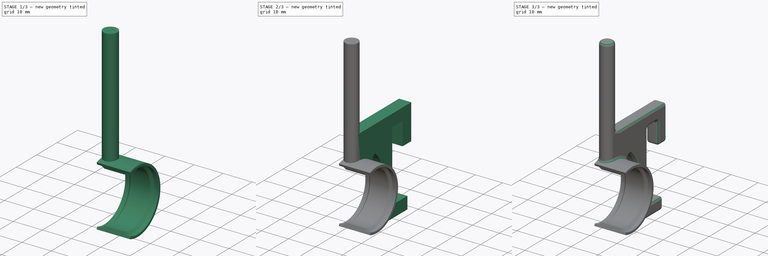
[diagram: build sequence overview — one tinted view per stage of 3, left to right]
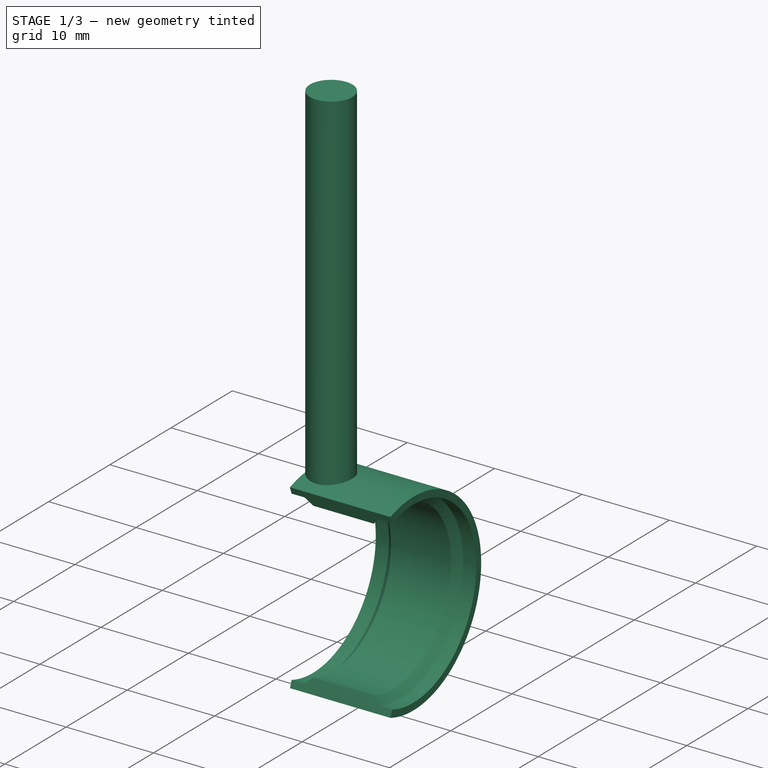
[diagram: stage 1 of 3 — iso view after this stage's code; geometry added in this stage tinted green]
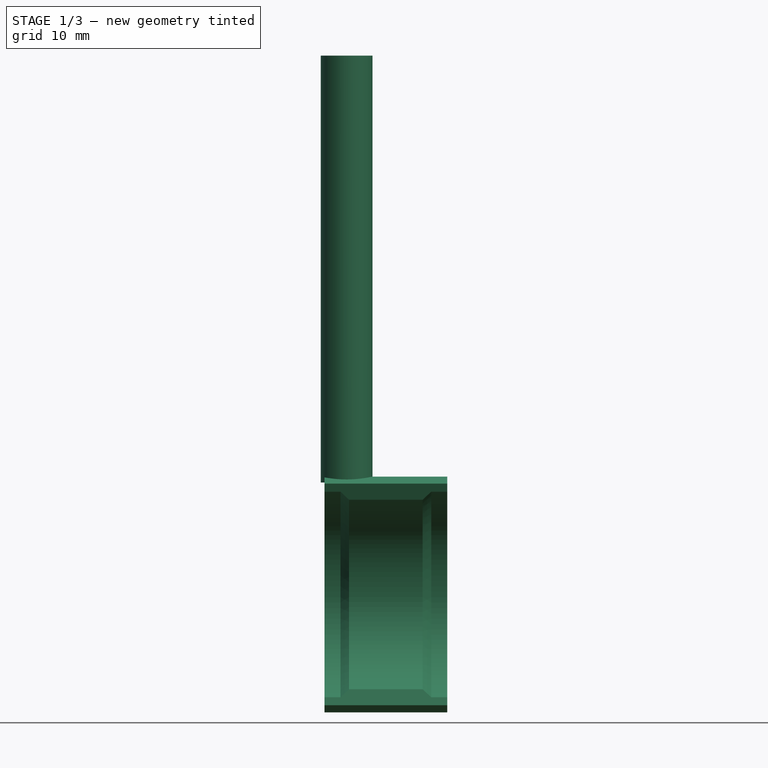
[diagram: stage 1 of 3 — front view after this stage's code; geometry added in this stage tinted green]
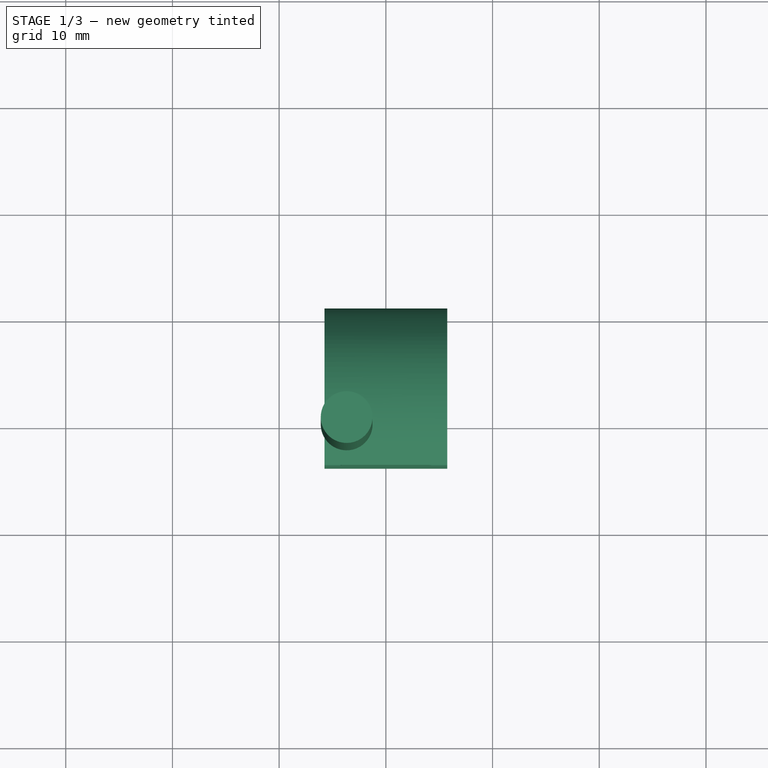
[diagram: stage 1 of 3 — top view after this stage's code; geometry added in this stage tinted green]
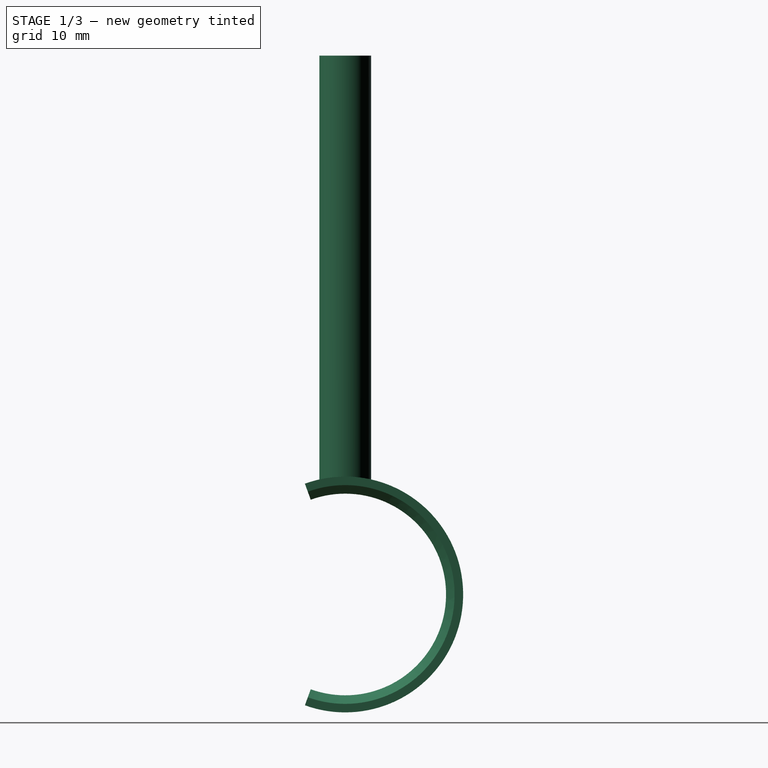
[diagram: stage 1 of 3 — right view after this stage's code; geometry added in this stage tinted green]
FCSTD DOCUMENT  (FreeCAD 1.2R20260210 (Git shallow))
Label: PD_SpoolHolder
License: Creative Commons Attribution 4.0
LicenseURL: https://creativecommons.org/licenses/by/4.0/
objects: Sketcher::SketchObject×3, PartDesign::Pad×2, PartDesign::Revolution×1, PartDesign::Plane×1, PartDesign::Fillet×1, PartDesign::Pocket×1, PartDesign::Body×1, App::Point×1
note: 23 computed .brp shape members not serialized (recipe doc carries the construction recipe); baked Part::Feature solids carry a one-line shape summary decoded from their .brp

FEATURE [Sketcher::SketchObject] Sketch
  ArcFitTolerance = 0
  AttachmentOffset = pos=(0,0,0) rot=(-1,0,0;0.349066rad)
  AttachmentSupport = -> [XZ_Plane]
  ExternalTypes = [0]
  FullyConstrained = true
  MakeInternals = false
  MapMode = 5
  Placement = pos=(0,0,0) rot=(1,0,0;1.22173rad)
  sketch-geometry (8):
    g0: LineSegment StartX=-5.75 StartY=-10.25 StartZ=0 EndX=-5.75 EndY=-11.05 EndZ=0
    g1: LineSegment StartX=-5.75 StartY=-11.05 StartZ=0 EndX=5.75 EndY=-11.05 EndZ=0
    g2: LineSegment StartX=5.75 StartY=-11.05 StartZ=0 EndX=5.75 EndY=-10.25 EndZ=0
    g3: LineSegment StartX=5.75 StartY=-10.25 StartZ=0 EndX=4.25 EndY=-10.25 EndZ=0
    g4: LineSegment StartX=4.25 StartY=-10.25 StartZ=0 EndX=3.45 EndY=-9.45 EndZ=0
    g5: LineSegment StartX=3.45 StartY=-9.45 StartZ=0 EndX=-3.45 EndY=-9.45 EndZ=0
    g6: LineSegment StartX=-3.45 StartY=-9.45 StartZ=0 EndX=-4.25 EndY=-10.25 EndZ=0
    g7: LineSegment StartX=-4.25 StartY=-10.25 StartZ=0 EndX=-5.75 EndY=-10.25 EndZ=0
  constraints (21):
    c: Vertical(g0)
    c: Coincident(g0,g1)
    c: Coincident(g1,g2)
    c: Vertical(g2)
    c: Coincident(g2,g3)
    c: Horizontal(g3)
    c: Coincident(g3,g4)
    c: Coincident(g4,g5)
    c: Coincident(g5,g6)
    c: Coincident(g6,g7)
    c: Coincident(g7,g0)
    c: Horizontal(g7)
    c: Symmetric(g4,g5,g-2)
    c: Symmetric(g3,g6,g-2)
    c: Symmetric(g0,g1,g-2)
    c: DistanceX(g1,g1) = 11.5
    c: DistanceX(g6,g3) = 8.5
    c: DistanceY(g2,g2) = 0.8
    c: DistanceY(g3,g4) = 0.8
    c: DistanceY(g4,g-1) = 9.45
    c: DistanceX(g5,g5) = 6.9
FEATURE [PartDesign::Revolution] Revolution
  Angle = 220
  Angle2 = 0
  Axis = (1,0,0)
  Base = (0,0,0)
  FuseOrder = 0
  Placement = pos=(0,0,0) rot=(1,0,0;1.5708rad)
  Profile = -> Sketch
  ReferenceAxis = -> X_Axis
  Refine = true
  Suppressed = false
  Type = 0
FEATURE [Sketcher::SketchObject] Sketch001
  ArcFitTolerance = 0
  AttachmentOffset = pos=(0,0,50.5) rot=(0,0,1;0rad)
  AttachmentSupport = -> [XY_Plane]
  ExternalTypes = [0]
  FullyConstrained = true
  MakeInternals = false
  MapMode = 5
  Placement = pos=(0,0,50.5) rot=(0,0,1;0rad)
  sketch-geometry (1):
    g0: Circle CenterX=-3.675 CenterY=0 CenterZ=0 NormalX=0 NormalY=0 NormalZ=1 AngleXU=0 Radius=2.425
  constraints (3):
    c: PointOnObject(g0,g-1)
    c: Diameter(g0) = 4.85
    c: DistanceX(g0,g-1) = 3.675
FEATURE [PartDesign::Pad] Pad
  BaseFeature = -> Revolution
  Direction = (0,0,1)
  Length = 40
  Length2 = 10
  Placement = pos=(0,0,0) rot=(1,0,0;1.5708rad)
  Profile = -> Sketch001
  ReferenceAxis = -> Sketch001 [N_Axis]
  Refine = true
  Reversed = true
  SideType = 0
  Suppressed = false
  Type = 0
  Type2 = 0
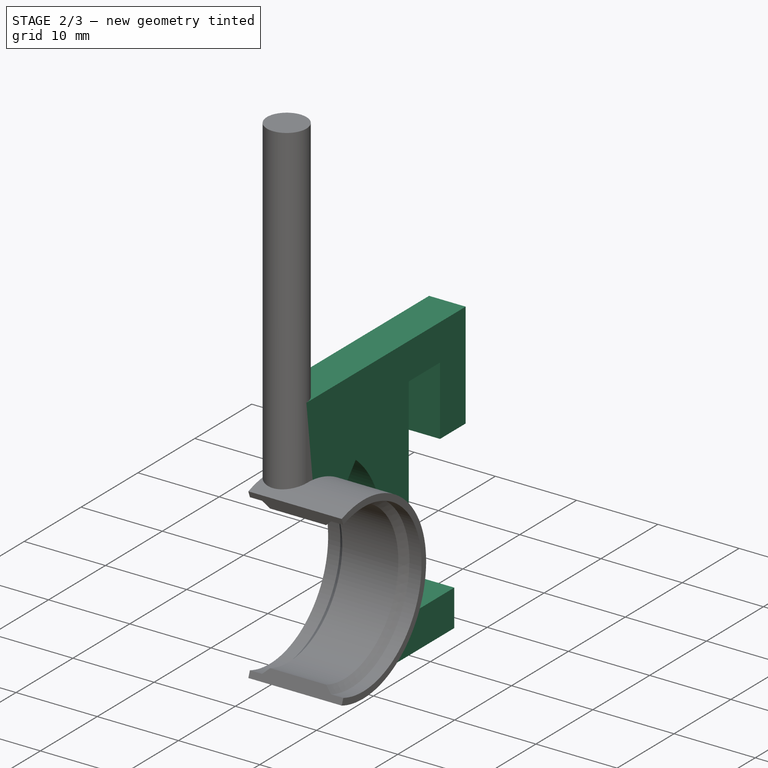
[diagram: stage 2 of 3 — iso view after this stage's code; geometry added in this stage tinted green]
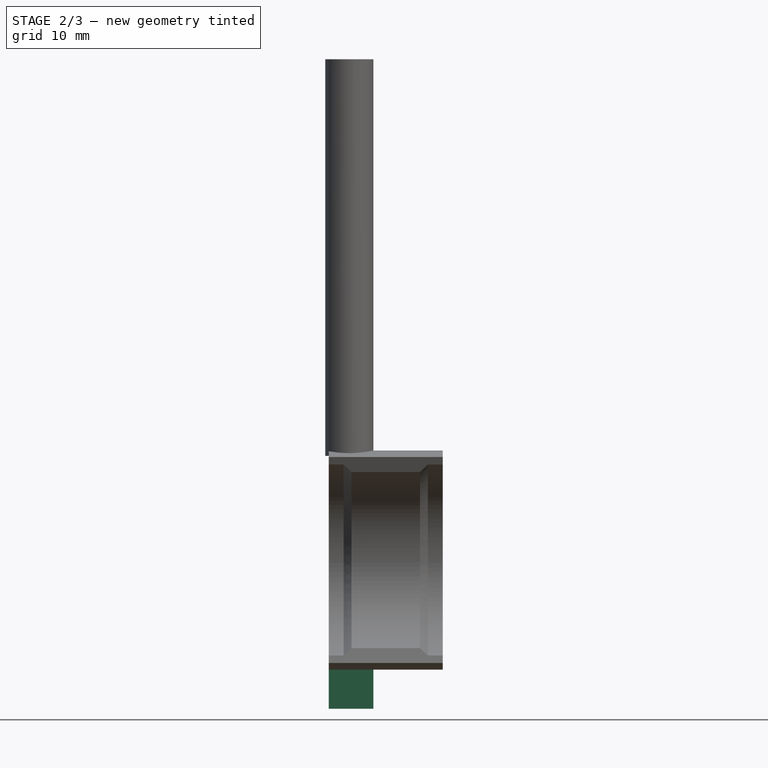
[diagram: stage 2 of 3 — front view after this stage's code; geometry added in this stage tinted green]
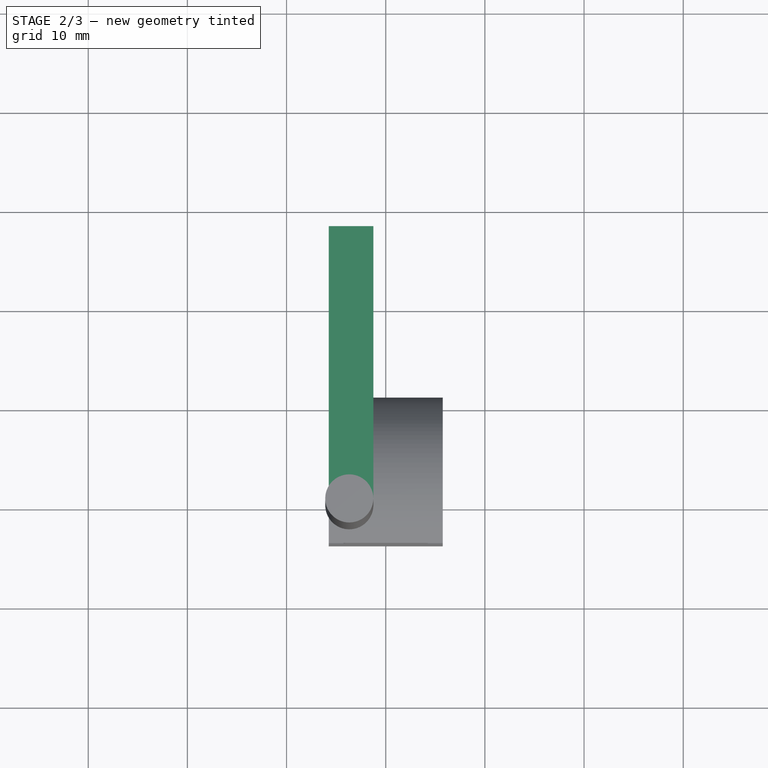
[diagram: stage 2 of 3 — top view after this stage's code; geometry added in this stage tinted green]
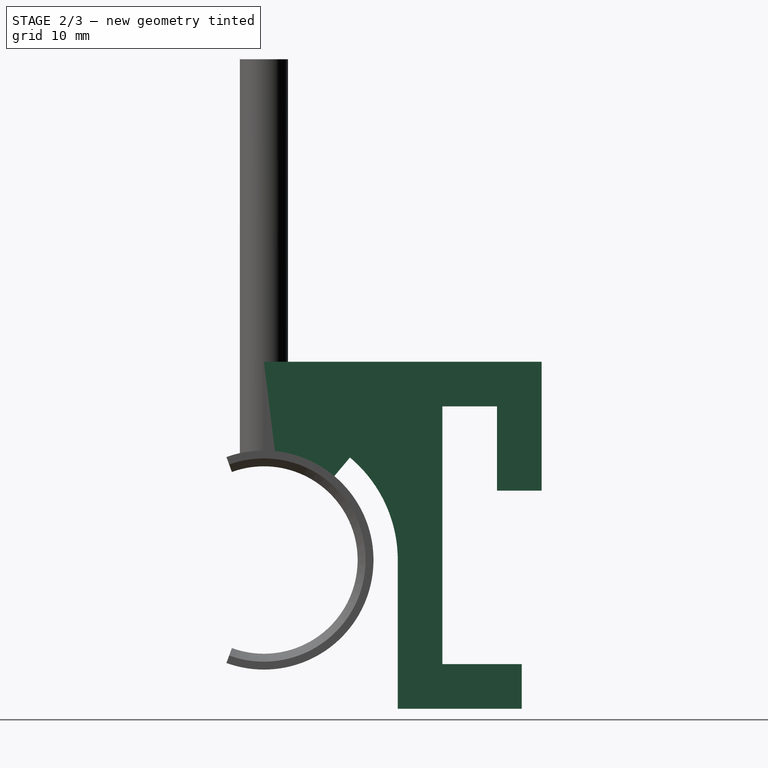
[diagram: stage 2 of 3 — right view after this stage's code; geometry added in this stage tinted green]
FEATURE [PartDesign::Plane] DatumPlane
  AttachmentOffset = pos=(0,0,-5.75) rot=(0,0,1;0rad)
  AttachmentSupport = -> [YZ_Plane]
  Length = 65.6515
  MapMode = 5
  Placement = pos=(-5.75,0,0) rot=(0.57735,0.57735,0.57735;2.0944rad)
  ResizeMode = 0
  Width = 88.1515
FEATURE [Sketcher::SketchObject] Sketch002
  ArcFitTolerance = 0
  AttachmentOffset = pos=(0,0,0) rot=(0,0,-1;1.5708rad)
  AttachmentSupport = -> [DatumPlane]
  ExternalTypes = [0]
  FullyConstrained = true
  MakeInternals = false
  MapMode = 5
  Placement = pos=(-5.75,0,0) rot=(0.707107,0,-0.707107;3.14159rad)
  sketch-geometry (15):
    g0: LineSegment StartX=-20 StartY=0 StartZ=0 EndX=-20 EndY=-28 EndZ=0
    g1: LineSegment StartX=-20 StartY=-28 StartZ=0 EndX=-7 EndY=-28 EndZ=0
    g2: LineSegment StartX=-7 StartY=-28 StartZ=0 EndX=-7 EndY=-23.5 EndZ=0
    g3: LineSegment StartX=-7 StartY=-23.5 StartZ=0 EndX=-15.5 EndY=-23.5 EndZ=0
    g4: LineSegment StartX=-15.5 StartY=-23.5 StartZ=0 EndX=-15.5 EndY=-18 EndZ=0
    g5: LineSegment StartX=-15.5 StartY=-18 StartZ=0 EndX=10.5 EndY=-18 EndZ=0
    g6: LineSegment StartX=10.5 StartY=-18 StartZ=0 EndX=10.5 EndY=-26 EndZ=0
    g7: LineSegment StartX=10.5 StartY=-26 StartZ=0 EndX=15 EndY=-26 EndZ=0
    g8: LineSegment StartX=15 StartY=-26 StartZ=0 EndX=15 EndY=-13.5 EndZ=0
    g9: LineSegment StartX=15 StartY=-13.5 StartZ=0 EndX=0 EndY=-13.5 EndZ=0
    g10: ArcOfCircle CenterX=1.7e-15 CenterY=4.4e-15 CenterZ=0 NormalX=0 NormalY=0 NormalZ=1 AngleXU=0 Radius=13.5 StartAngle=3.83972 EndAngle=4.71239
    g11: LineSegment StartX=-10.3416 StartY=-8.67763 StartZ=0 EndX=-8.04347 EndY=-6.74927 EndZ=0
    g12: ArcOfCircle CenterX=0 CenterY=0 CenterZ=0 NormalX=0 NormalY=0 NormalZ=1 AngleXU=0 Radius=10.5 StartAngle=3.14159 EndAngle=3.83972
    g13: LineSegment StartX=-10.5 StartY=1.3e-15 StartZ=0 EndX=-10.5 EndY=0 EndZ=0
    g14: LineSegment StartX=-20 StartY=0 StartZ=0 EndX=-10.5 EndY=1.3e-15 EndZ=0
  constraints (43):
    c: PointOnObject(g0,g-1)
    c: Vertical(g0)
    c: Coincident(g0,g1)
    c: Horizontal(g1)
    c: Coincident(g1,g2)
    c: Vertical(g2)
    c: Coincident(g2,g3)
    c: Horizontal(g3)
    c: Coincident(g3,g4)
    c: Vertical(g4)
    c: Coincident(g4,g5)
    c: Horizontal(g5)
    c: Coincident(g5,g6)
    c: Vertical(g6)
    c: Coincident(g6,g7)
    c: Horizontal(g7)
    c: Coincident(g7,g8)
    c: Vertical(g8)
    c: Coincident(g8,g9)
    c: PointOnObject(g9,g-2)
    c: Horizontal(g9)
    c: Tangent(g9,g10) = 1.5708
    c: Perpendicular(g10,g11) = 1.5708
    c: Perpendicular(g11,g12) = 4.71239
    c: PointOnObject(g12,g-1)
    c: Coincident(g12,g13)
    c: PointOnObject(g13,g-1)
    c: Coincident(g12,g-1)
    c: Radius(g12) = 10.5
    c: Distance(g9,g-1) = 13.5
    c: Angle(g11,g-2) = 0.872665
    c: DistanceY(g8,g8) = 12.5
    c: DistanceX(g7,g7) = 4.5
    c: DistanceY(g2,g2) = 4.5
    c: DistanceY(g4,g4) = 5.5
    c: Distance(g6,g2) = 17.5
    c: Distance(g0,g-2) = 20
    c: DistanceX(g1,g1) = 13
    c: DistanceX(g3,g3) = 8.5
    c: Distance(g5,g9) = 4.5
    c: Vertical(g13)
    c: Coincident(g14,g0)
    c: Coincident(g12,g14)
FEATURE [PartDesign::Pad] Pad001
  BaseFeature = -> Pad
  Direction = (-1,0,0)
  Length = 4.5
  Length2 = 10
  Placement = pos=(0,0,0) rot=(1,0,0;1.5708rad)
  Profile = -> Sketch002
  ReferenceAxis = -> Sketch002 [N_Axis]
  Refine = true
  Reversed = true
  SideType = 0
  Suppressed = false
  Type = 0
  Type2 = 0
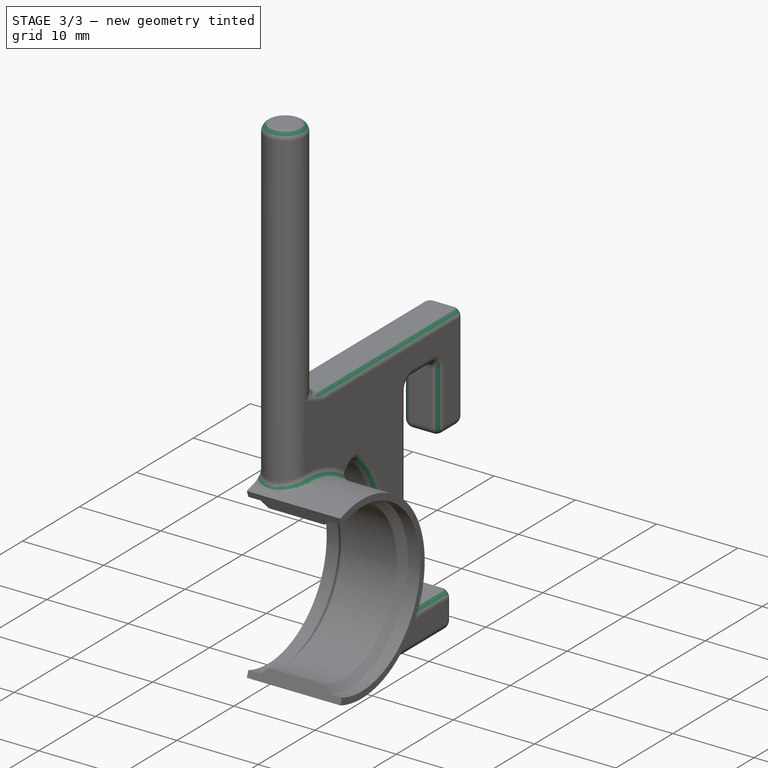
[diagram: stage 3 of 3 — iso view after this stage's code; geometry added in this stage tinted green]
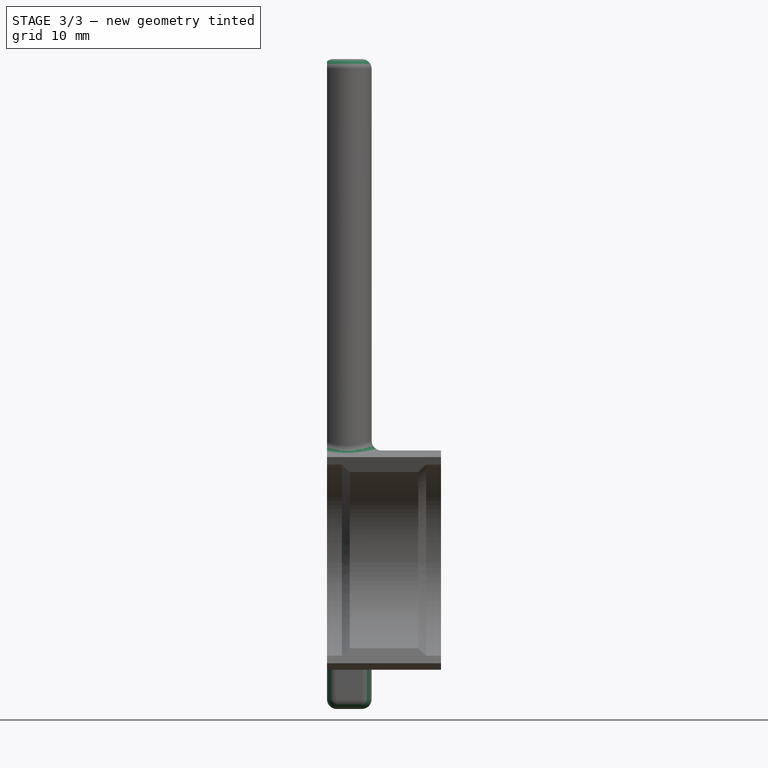
[diagram: stage 3 of 3 — front view after this stage's code; geometry added in this stage tinted green]
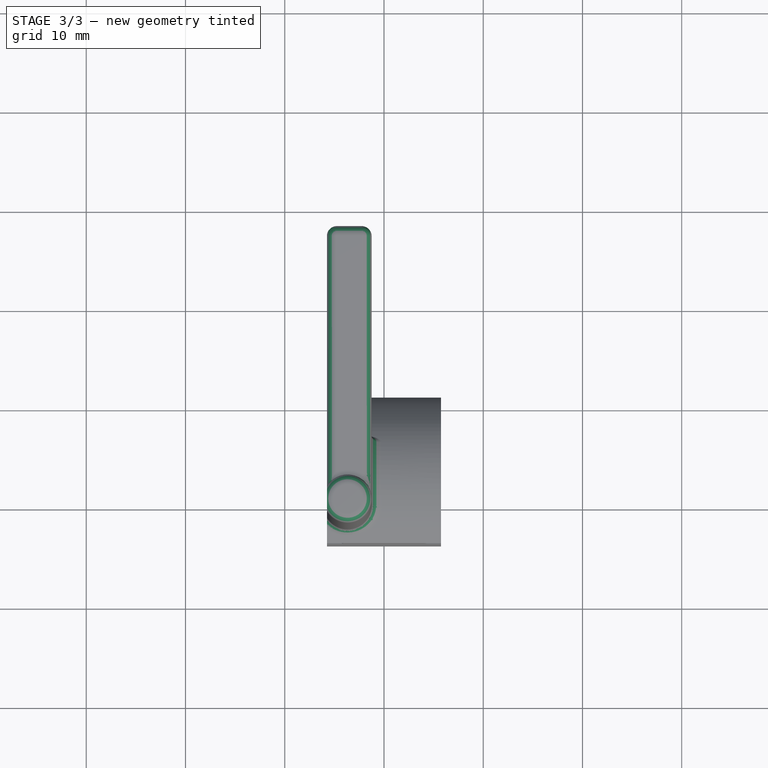
[diagram: stage 3 of 3 — top view after this stage's code; geometry added in this stage tinted green]
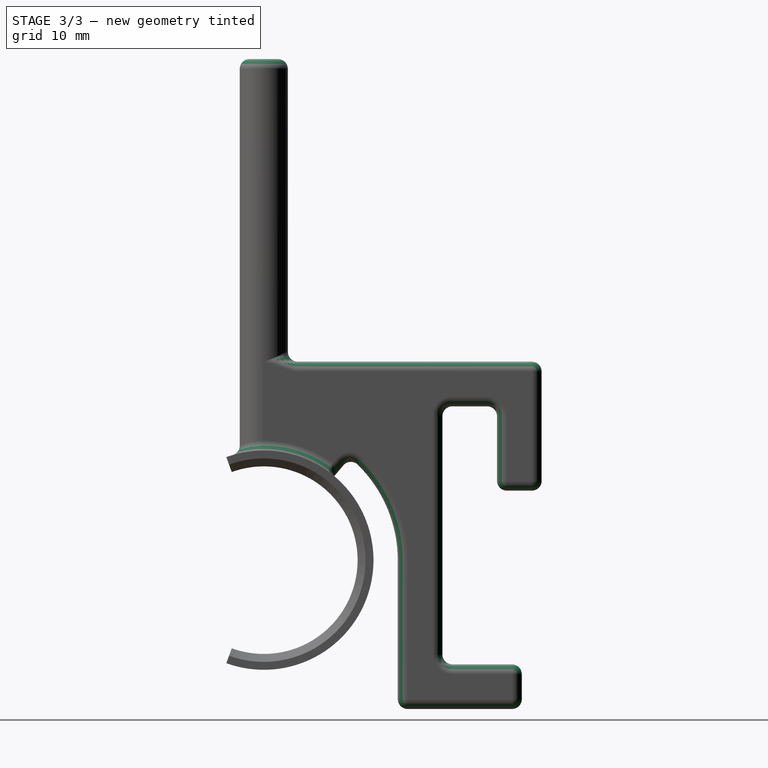
[diagram: stage 3 of 3 — right view after this stage's code; geometry added in this stage tinted green]
FEATURE [PartDesign::Fillet] Fillet
  Base = -> Pad001 [Edge22,Edge12,Edge48,Edge46,Edge70,Edge45,Edge43,Edge42,Edge41,Edge51,Edge21,Edge37,Edge55,Edge58,Edge40,Edge39,Edge38,Edge52,Edge63,Edge44,Edge64,Edge13,Edge60,Edge59,Edge62,Edge56,Edge53,Edge54,Edge49,Edge71,Edge68,Edge67,Edge65,Edge66,Edge57,Edge50,Edge61]
  BaseFeature = -> Pad001
  Placement = pos=(0,0,0) rot=(1,0,0;1.5708rad)
  Radius = 1
  Refine = true
  SupportTransform = false
  Suppressed = false
  UseAllEdges = false
FEATURE [PartDesign::Pocket] Pocket
  BaseFeature = -> Fillet
  Direction = (0,0,1)
  Length = 5
  Length2 = 5
  Placement = pos=(0,0,0) rot=(1,0,0;1.5708rad)
  Profile = -> Fillet [Face13]
  Refine = true
  SideType = 0
  Suppressed = false
  Type = 1
  Type2 = 0
FEATURE [PartDesign::Body] Body  label="Garnhalter_einzeln"
  AllowCompound = true
  Group = -> [Sketch,Revolution,Sketch001,Pad,DatumPlane,Sketch002,Pad001,Fillet,Pocket]
  Origin = -> Origin
  Tip = -> Pocket
FEATURE [App::Point] Origin002  label="Ursprung"
  Role = Origin
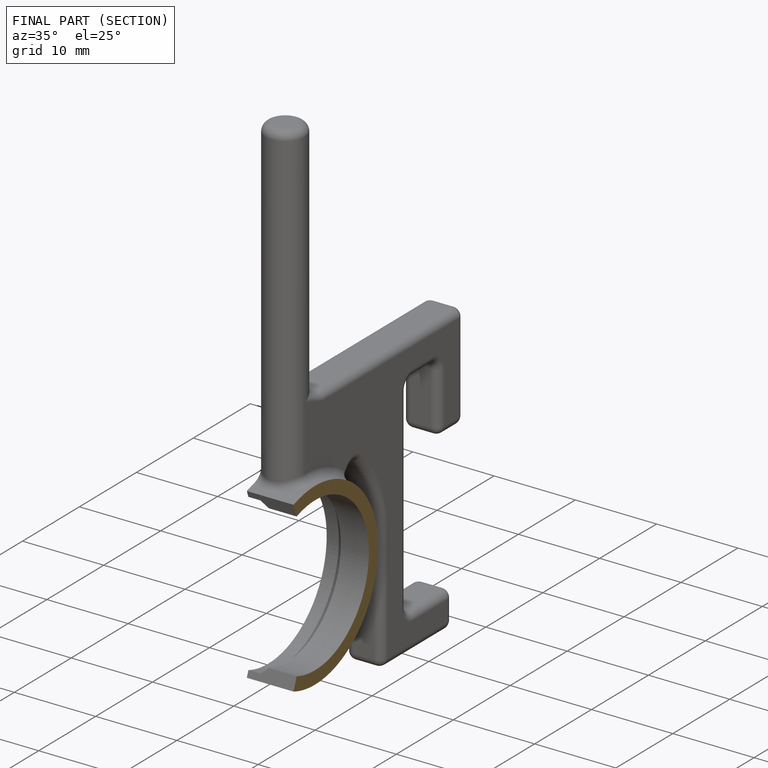
[diagram: finished part — half-section view (interior)]
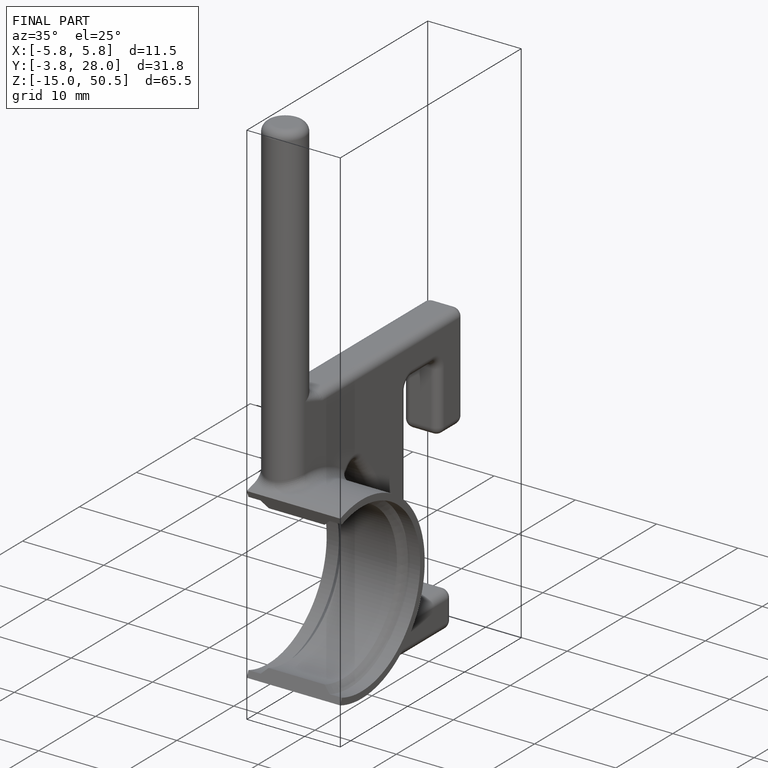
[diagram: finished part — iso view with bounding-box wireframe]
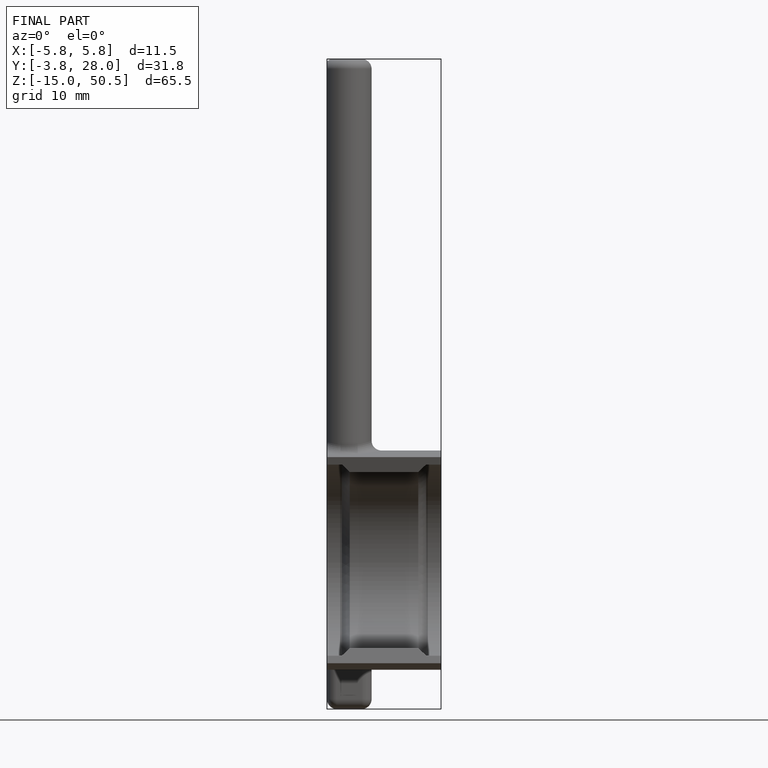
[diagram: finished part — front view with bounding-box wireframe]
